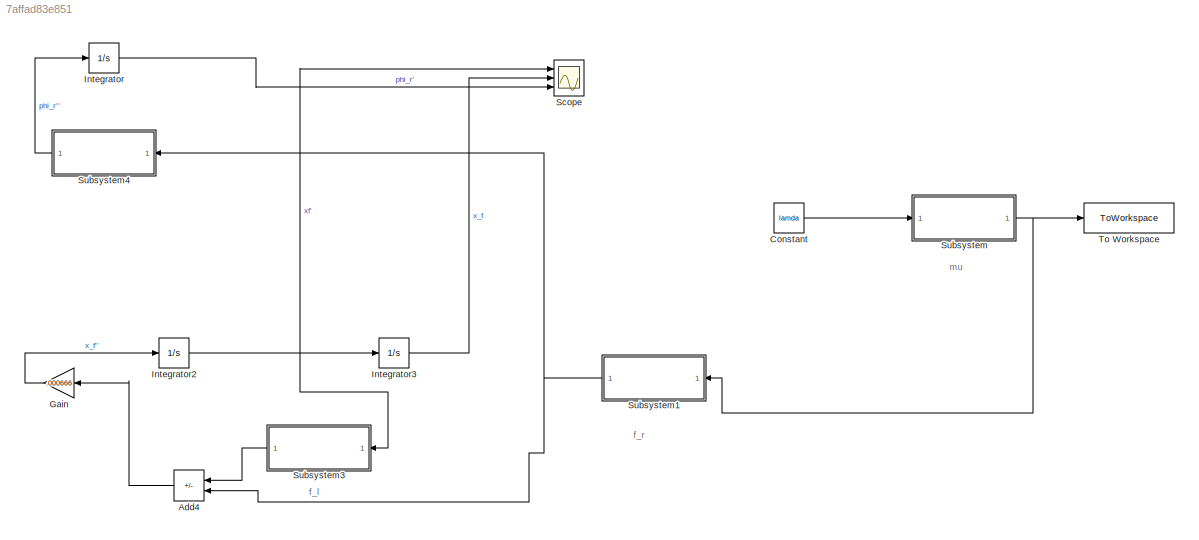
MODEL slx_7affad83e851
KIND model
CONFIG AbsTol = auto
CONFIG EnableMultiTasking = off
CONFIG FixedStep = auto
CONFIG MaxStep = auto
CONFIG MinStep = auto
CONFIG RelTol = 1e-3
CONFIG SampleTimeConstraint = Unconstrained
CONFIG Solver = ode15s
CONFIG SolverName = ode15s
CONFIG StartTime = 0.0
CONFIG StopTime = 10
BLOCK [Sum] Add4
  IconShape = rectangular
  Inputs = --
  NameLocation = top
  Ports = [2, 1]
BLOCK [Constant] Constant
  Value = lamda
BLOCK [Gain] Gain
  Gain = .000666
  NameLocation = top
BLOCK [Integrator] Integrator
  LimitOutput = on
  LowerSaturationLimit = 0
  Ports = [1, 1]
BLOCK [Integrator] Integrator2
  InitialCondition = 30
  LimitOutput = on
  LowerSaturationLimit = 0
  Ports = [1, 1]
BLOCK [Integrator] Integrator3
  Ports = [1, 1]
BLOCK [Scope] Scope
  Floating = off
  NumInputPorts = 3
  Ports = [3]
  ScopeSpecificationString = Simulink.scopes.TimeScopeBlockCfg('CurrentConfiguration', extmgr.ConfigurationSet(extmgr.Configuration('Core','General UI',true),extmgr.Configuration('Core','Source UI',true),extmgr.Configuration('Sources','WiredSimulink',true),extmgr.Configuration('Visuals','Time Domain',true,'SerializedDisplays',{struct('MinYLimReal','-35.93896','MaxYLimReal','323.45062','YLabelReal','','MinYLimMag','0.00000','M...<+1487ch>
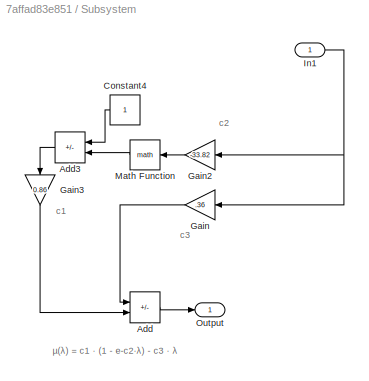
BLOCK [SubSystem] Subsystem
  Ports = [1, 1]
  RequestExecContextInheritance = off
BLOCK [Sum] Subsystem/Add
  IconShape = rectangular
  Inputs = -+
  Ports = [2, 1]
BLOCK [Sum] Subsystem/Add3
  IconShape = rectangular
  Inputs = +-
  NameLocation = top
  Ports = [2, 1]
BLOCK [Constant] Subsystem/Constant4
  NameLocation = top
BLOCK [Gain] Subsystem/Gain
  Gain = .36
  NameLocation = top
BLOCK [Gain] Subsystem/Gain2
  Gain = -33.82
  NameLocation = top
BLOCK [Gain] Subsystem/Gain3
  Gain = 0.86
  NameLocation = left
BLOCK [Inport] Subsystem/In1
BLOCK [Math] Subsystem/Math Function
  NameLocation = top
  Ports = [1, 1]
BLOCK [Outport] Subsystem/Output
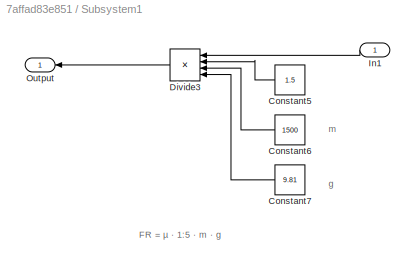
BLOCK [SubSystem] Subsystem1
  NameLocation = top
  Ports = [1, 1]
  RequestExecContextInheritance = off
BLOCK [Constant] Subsystem1/Constant5
  NameLocation = top
  Value = 1.5
BLOCK [Constant] Subsystem1/Constant6
  NameLocation = top
  Value = 1500
BLOCK [Constant] Subsystem1/Constant7
  NameLocation = top
  Value = 9.81
BLOCK [Product] Subsystem1/Divide3
  Inputs = ****
  NameLocation = top
  Ports = [4, 1]
BLOCK [Inport] Subsystem1/In1
  NameLocation = top
BLOCK [Outport] Subsystem1/Output
  NameLocation = top
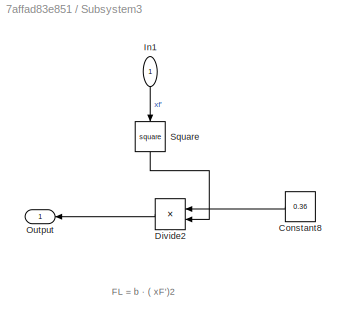
BLOCK [SubSystem] Subsystem3
  NameLocation = top
  Ports = [1, 1]
  RequestExecContextInheritance = off
BLOCK [Constant] Subsystem3/Constant8
  NameLocation = top
  Value = 0.36
BLOCK [Product] Subsystem3/Divide2
  Inputs = **
  NameLocation = top
  Ports = [2, 1]
BLOCK [Inport] Subsystem3/In1
  NameLocation = left
BLOCK [Outport] Subsystem3/Output
  NameLocation = top
BLOCK [Math] Subsystem3/Square
  NameLocation = left
  Operator = square
  Ports = [1, 1]
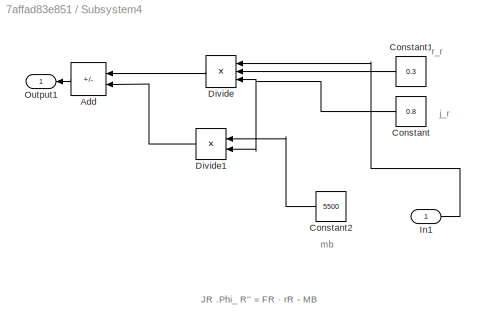
BLOCK [SubSystem] Subsystem4
  NameLocation = top
  Ports = [1, 1]
  RequestExecContextInheritance = off
BLOCK [Sum] Subsystem4/Add
  IconShape = rectangular
  Inputs = +-
  NameLocation = top
  Ports = [2, 1]
BLOCK [Constant] Subsystem4/Constant
  NameLocation = top
  Value = 0.8
BLOCK [Constant] Subsystem4/Constant1
  NameLocation = top
  Value = 0.3
BLOCK [Constant] Subsystem4/Constant2
  NameLocation = top
  Value = 5500
BLOCK [Product] Subsystem4/Divide
  Inputs = **/
  NameLocation = top
  Ports = [3, 1]
BLOCK [Product] Subsystem4/Divide1
  Inputs = */
  NameLocation = top
  Ports = [2, 1]
BLOCK [Inport] Subsystem4/In1
BLOCK [Outport] Subsystem4/Output1
  NameLocation = top
BLOCK [ToWorkspace] To Workspace
  FixptAsFi = on
  MaxDataPoints = inf
  Ports = [1]
  SampleTime = -1
  VariableName = mu
ANNOTATION (root): mu
ANNOTATION (root): f_l
ANNOTATION (root): f_r
ANNOTATION Subsystem: µ(λ) = c1 · (1 - e-c2·λ) - c3 · λ
ANNOTATION Subsystem: c1
ANNOTATION Subsystem: c2
ANNOTATION Subsystem: c3
ANNOTATION Subsystem1: FR = µ · 1:5 · m · g
ANNOTATION Subsystem1: g
ANNOTATION Subsystem1: m
ANNOTATION Subsystem3: FL = b · ( xF')2
ANNOTATION Subsystem4: JR .Phi_ R'' = FR · rR - MB
ANNOTATION Subsystem4: j_r
ANNOTATION Subsystem4: mb
ANNOTATION Subsystem4: r_r
LINE Add4:1 -> Gain:1
LINE Constant:1 -> Subsystem:1
LINE Gain:1 -> Integrator2:1
NET Integrator2:1 -> Integrator3:1, Scope:1, Subsystem3:1
LINE Integrator3:1 -> Scope:2
LINE Integrator:1 -> Scope:3
LINE Subsystem/Add3:1 -> Subsystem/Gain3:1
LINE Subsystem/Add:1 -> Subsystem/Output:1
LINE Subsystem/Constant4:1 -> Subsystem/Add3:1
LINE Subsystem/Gain2:1 -> Subsystem/Math Function:1
LINE Subsystem/Gain3:1 -> Subsystem/Add:2
LINE Subsystem/Gain:1 -> Subsystem/Add:1
NET Subsystem/In1:1 -> Subsystem/Gain2:1, Subsystem/Gain:1
LINE Subsystem/Math Function:1 -> Subsystem/Add3:2
LINE Subsystem1/Constant5:1 -> Subsystem1/Divide3:2
LINE Subsystem1/Constant6:1 -> Subsystem1/Divide3:3
LINE Subsystem1/Constant7:1 -> Subsystem1/Divide3:4
LINE Subsystem1/Divide3:1 -> Subsystem1/Output:1
LINE Subsystem1/In1:1 -> Subsystem1/Divide3:1
NET Subsystem1:1 -> Add4:2, Subsystem4:1
LINE Subsystem3/Constant8:1 -> Subsystem3/Divide2:1
LINE Subsystem3/Divide2:1 -> Subsystem3/Output:1
LINE Subsystem3/In1:1 -> Subsystem3/Square:1
LINE Subsystem3/Square:1 -> Subsystem3/Divide2:2
LINE Subsystem3:1 -> Add4:1
LINE Subsystem4/Add:1 -> Subsystem4/Output1:1
LINE Subsystem4/Constant1:1 -> Subsystem4/Divide:2
LINE Subsystem4/Constant2:1 -> Subsystem4/Divide1:1
NET Subsystem4/Constant:1 -> Subsystem4/Divide1:2, Subsystem4/Divide:3
LINE Subsystem4/Divide1:1 -> Subsystem4/Add:2
LINE Subsystem4/Divide:1 -> Subsystem4/Add:1
LINE Subsystem4/In1:1 -> Subsystem4/Divide:1
LINE Subsystem4:1 -> Integrator:1
NET Subsystem:1 -> Subsystem1:1, To Workspace:1
note: NET lines group one-source signal fan-out (src -> all destinations, sorted); 1:1 wires keep LINE
